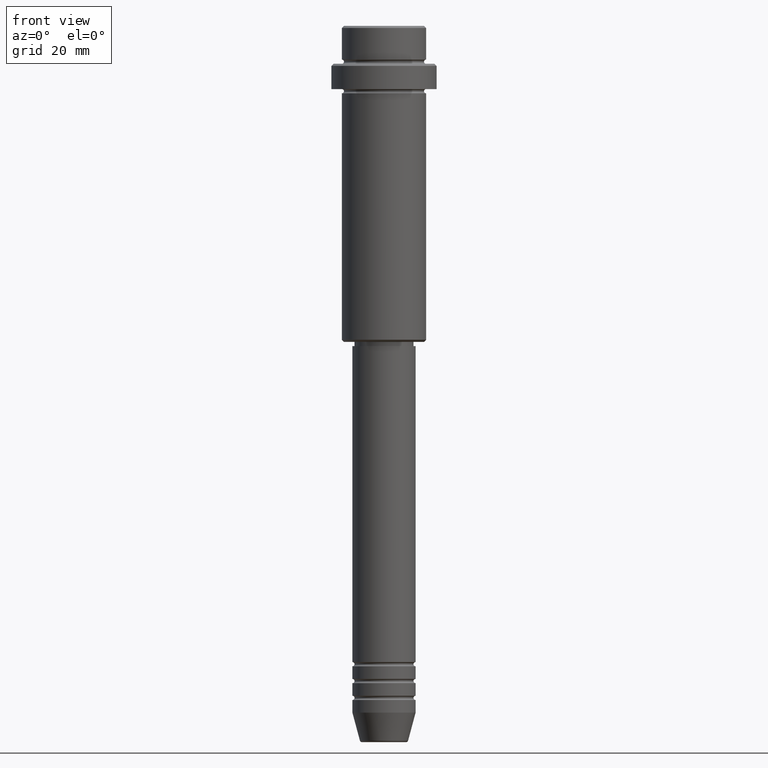
[diagram: clean part render]
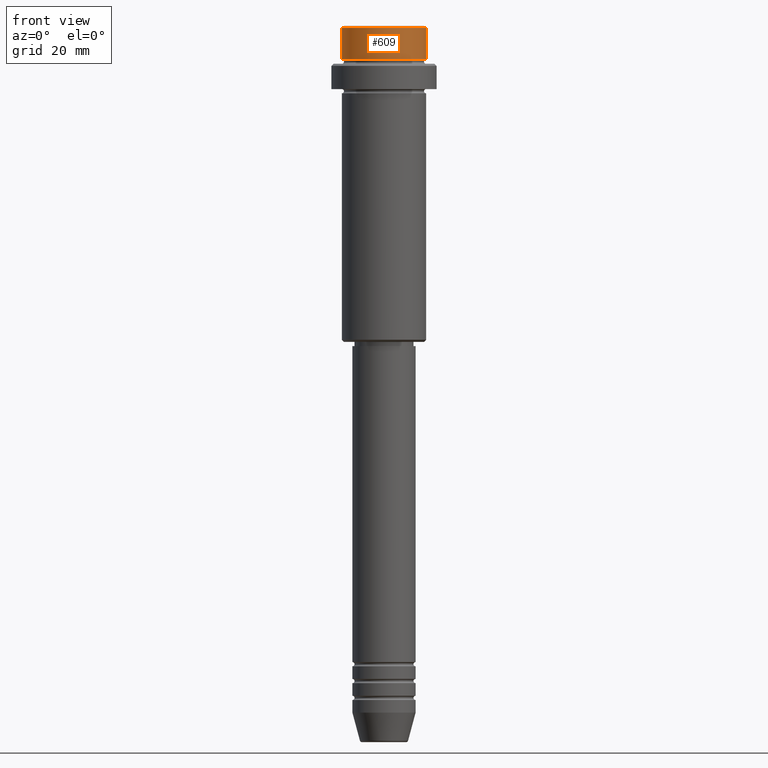
[diagram: same view with one face highlighted and labeled with its STEP entity id]
A machine part, front view. The second image highlights one B-rep face of the part: STEP entity #609.
In plain terms, the highlighted cylindrical surface (partial cylindrical patch) has radius 10 mm, axis along (-0, -0, 1).
Its self-contained STEP definition (entity closure, byte-faithful):
#14 = DIRECTION ( 'NONE',  ( -0.000000000000000000, -0.000000000000000000, 1.000000000000000000 ) ) ;
#29 = EDGE_LOOP ( 'NONE', ( #103, #544, #939, #1411 ) ) ;
#32 = AXIS2_PLACEMENT_3D ( 'NONE', #467, #791, #47 ) ;
#47 = DIRECTION ( 'NONE',  ( 1.000000000000000000, 0.000000000000000000, 0.000000000000000000 ) ) ;
#51 = VECTOR ( 'NONE', #719, 1000.000000000000000 ) ;
#102 = CIRCLE ( 'NONE', #32, 9.999999999999998224 ) ;
#103 = ORIENTED_EDGE ( 'NONE', *, *, #1129, .F. ) ;
#120 = LINE ( 'NONE', #550, #840 ) ;
#219 = VERTEX_POINT ( 'NONE', #225 ) ;
#225 = CARTESIAN_POINT ( 'NONE',  ( -9.999999999999998224, 1.224646799147353059E-15, -0.4999999999999970024 ) ) ;
#230 = EDGE_CURVE ( 'NONE', #598, #837, #120, .T. ) ;
#339 = AXIS2_PLACEMENT_3D ( 'NONE', #928, #1125, #571 ) ;
#379 = CARTESIAN_POINT ( 'NONE',  ( 0.000000000000000000, 0.000000000000000000, -0.4999999999999970024 ) ) ;
#401 = CARTESIAN_POINT ( 'NONE',  ( -9.999999999999998224, 1.224646799147353059E-15, 0.000000000000000000 ) ) ;
#467 = CARTESIAN_POINT ( 'NONE',  ( 0.000000000000000000, 0.000000000000000000, -7.999999999999998224 ) ) ;
#544 = ORIENTED_EDGE ( 'NONE', *, *, #1399, .T. ) ;
#550 = CARTESIAN_POINT ( 'NONE',  ( 9.999999999999998224, 0.000000000000000000, 0.000000000000000000 ) ) ;
#571 = DIRECTION ( 'NONE',  ( 1.000000000000000000, 0.000000000000000000, 0.000000000000000000 ) ) ;
#595 = CARTESIAN_POINT ( 'NONE',  ( 9.999999999999998224, 0.000000000000000000, -7.999999999999998224 ) ) ;
#598 = VERTEX_POINT ( 'NONE', #595 ) ;
#609 = ADVANCED_FACE ( 'NONE', ( #1247 ), #1150, .T. ) ;
#719 = DIRECTION ( 'NONE',  ( -0.000000000000000000, -0.000000000000000000, 1.000000000000000000 ) ) ;
#726 = DIRECTION ( 'NONE',  ( 0.000000000000000000, 0.000000000000000000, -1.000000000000000000 ) ) ;
#791 = DIRECTION ( 'NONE',  ( -0.000000000000000000, -0.000000000000000000, 1.000000000000000000 ) ) ;
#837 = VERTEX_POINT ( 'NONE', #1415 ) ;
#840 = VECTOR ( 'NONE', #14, 1000.000000000000000 ) ;
#928 = CARTESIAN_POINT ( 'NONE',  ( 0.000000000000000000, 0.000000000000000000, 0.000000000000000000 ) ) ;
#939 = ORIENTED_EDGE ( 'NONE', *, *, #230, .T. ) ;
#969 = DIRECTION ( 'NONE',  ( 1.000000000000000000, 0.000000000000000000, 0.000000000000000000 ) ) ;
#1068 = LINE ( 'NONE', #401, #51 ) ;
#1113 = AXIS2_PLACEMENT_3D ( 'NONE', #379, #726, #969 ) ;
#1125 = DIRECTION ( 'NONE',  ( -0.000000000000000000, -0.000000000000000000, 1.000000000000000000 ) ) ;
#1128 = EDGE_CURVE ( 'NONE', #837, #219, #1135, .T. ) ;
#1129 = EDGE_CURVE ( 'NONE', #1296, #219, #1068, .T. ) ;
#1135 = CIRCLE ( 'NONE', #1113, 9.999999999999998224 ) ;
#1150 = CYLINDRICAL_SURFACE ( 'NONE', #339, 9.999999999999998224 ) ;
#1185 = CARTESIAN_POINT ( 'NONE',  ( -9.999999999999998224, 1.224646799147353059E-15, -7.999999999999998224 ) ) ;
#1247 = FACE_OUTER_BOUND ( 'NONE', #29, .T. ) ;
#1296 = VERTEX_POINT ( 'NONE', #1185 ) ;
#1399 = EDGE_CURVE ( 'NONE', #1296, #598, #102, .T. ) ;
#1411 = ORIENTED_EDGE ( 'NONE', *, *, #1128, .T. ) ;
#1415 = CARTESIAN_POINT ( 'NONE',  ( 9.999999999999998224, 0.000000000000000000, -0.4999999999999970024 ) ) ;